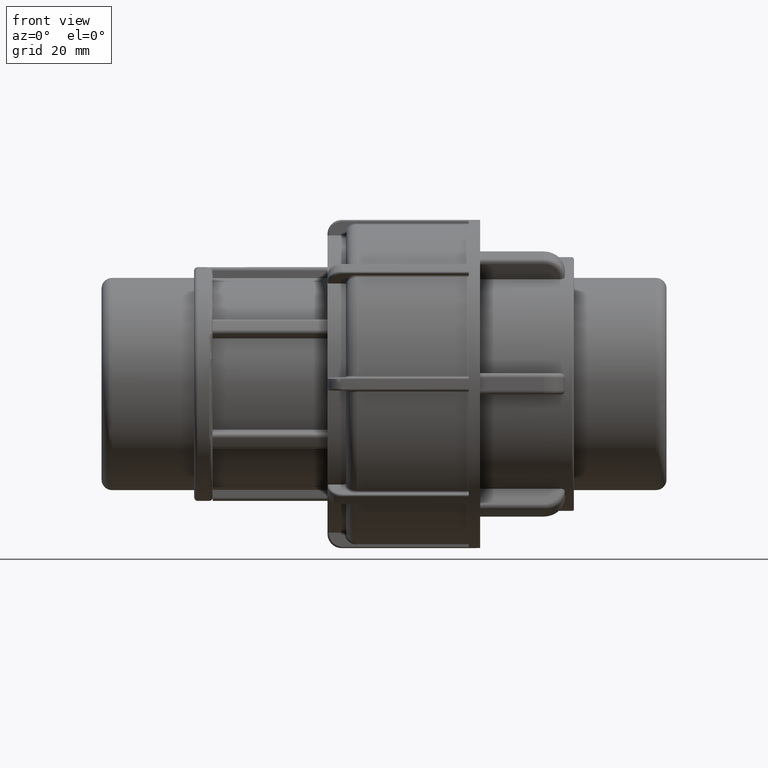
[diagram: clean part render]
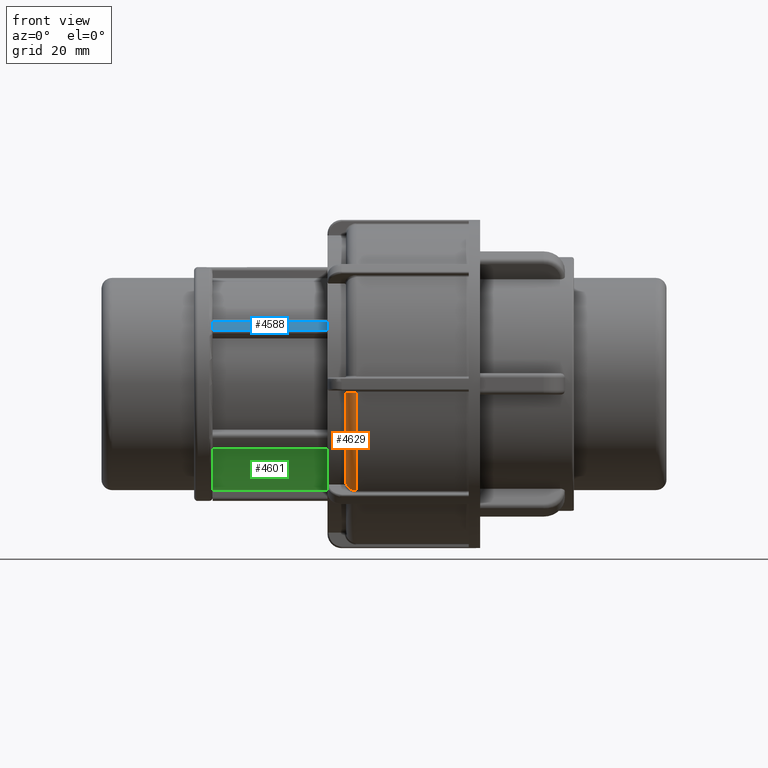
[diagram: same view with three faces highlighted in distinct colors, each labeled with its STEP entity id]
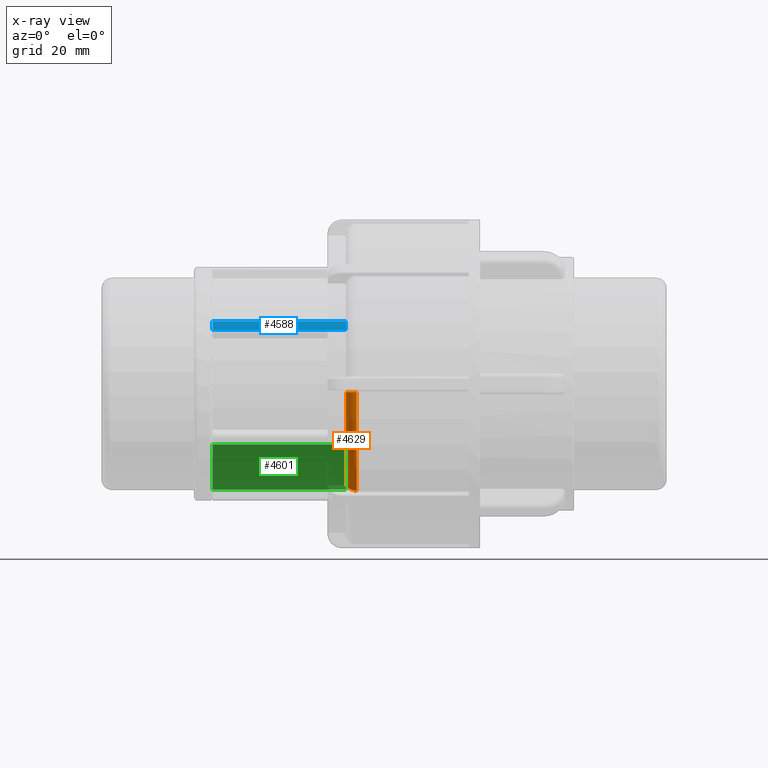
[diagram: x-ray of the same camera — body ghosted, the three highlighted faces saturated]
A machine part, front view with three faces highlighted in distinct colors.
The next image is the same camera in x-ray (body ghosted, the three faces saturated) — at least one of them is partly hidden behind the body in this view.
Their STEP definitions:

[orange] entity #4629 — the highlighted toroidal blend (fillet) surface has major radius 41.6878 mm and minor (blend) radius 2.9807 mm.
#176=TOROIDAL_SURFACE('',#5152,41.6878,2.9807);
#442=FACE_OUTER_BOUND('',#725,.T.);
#725=EDGE_LOOP('',(#4206,#4207,#4208,#4209));
#792=B_SPLINE_CURVE_WITH_KNOTS('',3,(#7836,#7837,#7838,#7839,#7840),
 .UNSPECIFIED.,.F.,.F.,(4,1,4),(-0.536046685375972,-0.22973429373256,-3.33066907387547E-16),
 .UNSPECIFIED.);
#806=B_SPLINE_CURVE_WITH_KNOTS('',3,(#8151,#8152,#8153,#8154,#8155),
 .UNSPECIFIED.,.F.,.F.,(4,1,4),(-0.536046685376008,-0.229734293732575,-1.26957301934004E-30),
 .UNSPECIFIED.);
#1614=CIRCLE('',#4936,41.7298);
#1722=CIRCLE('',#5143,44.6685);
#1973=VERTEX_POINT('',#7811);
#1975=VERTEX_POINT('',#7834);
#2001=VERTEX_POINT('',#8106);
#2002=VERTEX_POINT('',#8134);
#2527=EDGE_CURVE('',#1975,#1973,#792,.T.);
#2576=EDGE_CURVE('',#2002,#2001,#806,.T.);
#2577=EDGE_CURVE('',#2002,#1973,#1614,.T.);
#2851=EDGE_CURVE('',#1975,#2001,#1722,.T.);
#4206=ORIENTED_EDGE('',*,*,#2527,.F.);
#4207=ORIENTED_EDGE('',*,*,#2851,.T.);
#4208=ORIENTED_EDGE('',*,*,#2576,.F.);
#4209=ORIENTED_EDGE('',*,*,#2577,.T.);
#4629=ADVANCED_FACE('',(#442),#176,.T.);
#4936=AXIS2_PLACEMENT_3D('',#8157,#5936,#5937);
#5143=AXIS2_PLACEMENT_3D('',#9438,#6465,#6466);
#5152=AXIS2_PLACEMENT_3D('',#9447,#6483,#6484);
#5936=DIRECTION('center_axis',(1.,0.,0.));
#5937=DIRECTION('ref_axis',(0.,0.,-1.));
#6465=DIRECTION('center_axis',(-1.,0.,0.));
#6466=DIRECTION('ref_axis',(0.,1.,-1.83720076010973E-16));
#6483=DIRECTION('center_axis',(1.,0.,0.));
#6484=DIRECTION('ref_axis',(0.,1.,-1.83720076010973E-16));
#7811=CARTESIAN_POINT('',(-89.9,-31.090347831877,-27.8346273503509));
#7834=CARTESIAN_POINT('',(-86.9195959183359,-33.1557627366819,-29.9327628126583));
#7836=CARTESIAN_POINT('Ctrl Pts',(-86.9195959183359,-33.1557627366819,-29.9327628126583));
#7837=CARTESIAN_POINT('Ctrl Pts',(-87.8040018869627,-33.1557627366819,-29.9327628126583));
#7838=CARTESIAN_POINT('Ctrl Pts',(-89.3346733685705,-32.6380362523036,-29.4076347209326));
#7839=CARTESIAN_POINT('Ctrl Pts',(-89.890667839714,-31.5555623201182,-28.3078147212477));
#7840=CARTESIAN_POINT('Ctrl Pts',(-89.9,-31.090347831877,-27.8346273503509));
#8106=CARTESIAN_POINT('',(-86.9195959183359,-44.6103242309992,-2.27900510204082));
#8134=CARTESIAN_POINT('',(-89.9,-41.6662495326023,-2.30214203013502));
#8151=CARTESIAN_POINT('Ctrl Pts',(-89.9,-41.6662495326024,-2.30214203013502));
#8152=CARTESIAN_POINT('Ctrl Pts',(-89.8875571196187,-42.5509832900352,-2.2946251242798));
#8153=CARTESIAN_POINT('Ctrl Pts',(-89.1324920484264,-44.0729534507543,-2.28281526775138));
#8154=CARTESIAN_POINT('Ctrl Pts',(-87.582900394806,-44.6103242309992,-2.27900510204082));
#8155=CARTESIAN_POINT('Ctrl Pts',(-86.9195959183359,-44.6103242309992,-2.27900510204082));
#8157=CARTESIAN_POINT('Origin',(-89.9,0.,0.));
#9438=CARTESIAN_POINT('Origin',(-86.9195959183359,0.,0.));
#9447=CARTESIAN_POINT('Origin',(-86.9195959183359,0.,0.));

[blue] entity #4588 — the highlighted cylindrical surface (partial cylindrical patch) has radius 32.7877 mm, axis along (1, 0, 0).
#401=FACE_OUTER_BOUND('',#680,.T.);
#680=EDGE_LOOP('',(#3979,#3980,#3981,#3982));
#1113=LINE('',#9246,#1407);
#1120=LINE('',#9266,#1414);
#1407=VECTOR('',#6274,37.4);
#1414=VECTOR('',#6291,37.4);
#1687=CIRCLE('',#5073,32.7877);
#1688=CIRCLE('',#5074,32.7877);
#2120=VERTEX_POINT('',#9243);
#2121=VERTEX_POINT('',#9245);
#2126=VERTEX_POINT('',#9259);
#2129=VERTEX_POINT('',#9264);
#2770=EDGE_CURVE('',#2120,#2121,#1113,.T.);
#2780=EDGE_CURVE('',#2129,#2126,#1120,.T.);
#2781=EDGE_CURVE('',#2120,#2126,#1687,.T.);
#2782=EDGE_CURVE('',#2121,#2129,#1688,.T.);
#3979=ORIENTED_EDGE('',*,*,#2770,.F.);
#3980=ORIENTED_EDGE('',*,*,#2781,.T.);
#3981=ORIENTED_EDGE('',*,*,#2780,.F.);
#3982=ORIENTED_EDGE('',*,*,#2782,.F.);
#4349=CYLINDRICAL_SURFACE('',#5072,32.7877);
#4588=ADVANCED_FACE('',(#401),#4349,.T.);
#5072=AXIS2_PLACEMENT_3D('',#9267,#6292,#6293);
#5073=AXIS2_PLACEMENT_3D('',#9268,#6294,#6295);
#5074=AXIS2_PLACEMENT_3D('',#9269,#6296,#6297);
#6274=DIRECTION('',(1.,0.,0.));
#6291=DIRECTION('',(-1.,0.,0.));
#6292=DIRECTION('center_axis',(1.,0.,0.));
#6293=DIRECTION('ref_axis',(0.,0.866025403784439,-0.5));
#6294=DIRECTION('center_axis',(1.,0.,0.));
#6295=DIRECTION('ref_axis',(0.,0.866025403784439,-0.5));
#6296=DIRECTION('center_axis',(1.,0.,0.));
#6297=DIRECTION('ref_axis',(0.,0.866025403784439,-0.5));
#9243=CARTESIAN_POINT('',(-127.3,-27.6539751120607,17.6150768318372));
#9245=CARTESIAN_POINT('',(-89.9,-27.6539751120607,17.6150768318372));
#9246=CARTESIAN_POINT('',(-127.3,-27.6539751120607,17.6150768318372));
#9259=CARTESIAN_POINT('',(-127.3,-29.0820915820161,15.1415065467486));
#9264=CARTESIAN_POINT('',(-89.9,-29.0820915820161,15.1415065467486));
#9266=CARTESIAN_POINT('',(-127.3,-29.0820915820161,15.1415065467486));
#9267=CARTESIAN_POINT('Origin',(-127.3,0.,0.));
#9268=CARTESIAN_POINT('Origin',(-127.3,0.,0.));
#9269=CARTESIAN_POINT('Origin',(-89.9,0.,0.));

[green] entity #4601 — the highlighted cylindrical surface (partial cylindrical patch) has radius 29.807 mm, axis along (1, 0, 0).
#414=FACE_OUTER_BOUND('',#693,.T.);
#693=EDGE_LOOP('',(#4046,#4047,#4048,#4049));
#1100=LINE('',#9196,#1394);
#1135=LINE('',#9306,#1429);
#1394=VECTOR('',#6225,37.4);
#1429=VECTOR('',#6332,37.4);
#1698=CIRCLE('',#5097,29.807);
#1699=CIRCLE('',#5098,29.807);
#2101=VERTEX_POINT('',#9193);
#2102=VERTEX_POINT('',#9195);
#2140=VERTEX_POINT('',#9303);
#2141=VERTEX_POINT('',#9305);
#2746=EDGE_CURVE('',#2102,#2101,#1100,.T.);
#2800=EDGE_CURVE('',#2141,#2140,#1135,.T.);
#2813=EDGE_CURVE('',#2141,#2101,#1698,.T.);
#2814=EDGE_CURVE('',#2140,#2102,#1699,.T.);
#4046=ORIENTED_EDGE('',*,*,#2746,.T.);
#4047=ORIENTED_EDGE('',*,*,#2813,.F.);
#4048=ORIENTED_EDGE('',*,*,#2800,.T.);
#4049=ORIENTED_EDGE('',*,*,#2814,.T.);
#4352=CYLINDRICAL_SURFACE('',#5096,29.807);
#4601=ADVANCED_FACE('',(#414),#4352,.T.);
#5096=AXIS2_PLACEMENT_3D('',#9329,#6361,#6362);
#5097=AXIS2_PLACEMENT_3D('',#9330,#6363,#6364);
#5098=AXIS2_PLACEMENT_3D('',#9331,#6365,#6366);
#6225=DIRECTION('',(1.,0.,0.));
#6332=DIRECTION('',(-1.,0.,0.));
#6361=DIRECTION('center_axis',(1.,0.,0.));
#6362=DIRECTION('ref_axis',(0.,1.,0.));
#6363=DIRECTION('center_axis',(1.,0.,0.));
#6364=DIRECTION('ref_axis',(0.,0.,-1.));
#6365=DIRECTION('center_axis',(1.,0.,0.));
#6366=DIRECTION('ref_axis',(0.,0.,-1.));
#9193=CARTESIAN_POINT('',(-89.9,-2.38456,-29.7114644978399));
#9195=CARTESIAN_POINT('',(-127.3,-2.38456,-29.7114644978399));
#9196=CARTESIAN_POINT('',(-108.6,-2.38456,-29.7114644978399));
#9303=CARTESIAN_POINT('',(-127.3,-24.5386030387688,-16.9208217857682));
#9305=CARTESIAN_POINT('',(-89.9,-24.5386030387688,-16.9208217857682));
#9306=CARTESIAN_POINT('',(-108.6,-24.5386030387688,-16.9208217857682));
#9329=CARTESIAN_POINT('Origin',(-108.6,0.,0.));
#9330=CARTESIAN_POINT('Origin',(-89.9,0.,0.));
#9331=CARTESIAN_POINT('Origin',(-127.3,0.,0.));